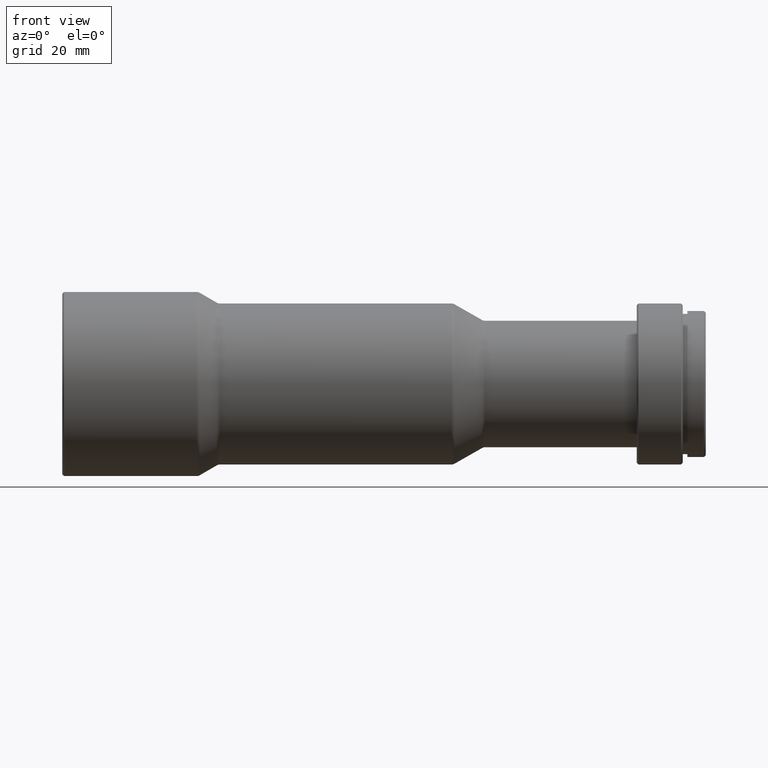
[diagram: clean part render]
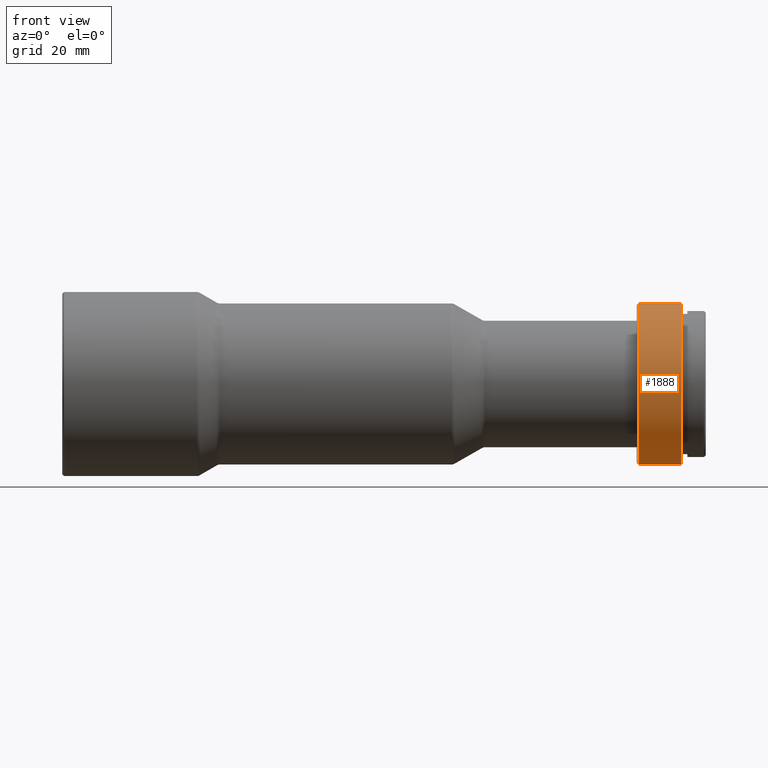
[diagram: same view with one face highlighted and labeled with its STEP entity id]
A machine part, front view. The second image highlights one B-rep face of the part: STEP entity #1888.
In plain terms, the highlighted cylindrical surface (partial cylindrical patch) has radius 14 mm, axis along (-1, -0, -0).
Its self-contained STEP definition (entity closure, byte-faithful):
#71 = EDGE_CURVE ( 'NONE', #901, #1162, #1196, .T. ) ;
#294 = CIRCLE ( 'NONE', #1772, 14.00000000000000000 ) ;
#300 = LINE ( 'NONE', #426, #1619 ) ;
#307 = AXIS2_PLACEMENT_3D ( 'NONE', #362, #960, #1207 ) ;
#362 = CARTESIAN_POINT ( 'NONE',  ( 0.0000000000000000000, 0.0000000000000000000, 0.0000000000000000000 ) ) ;
#426 = CARTESIAN_POINT ( 'NONE',  ( 0.0000000000000000000, 1.714505518806294600E-015, -14.00000000000000000 ) ) ;
#463 = AXIS2_PLACEMENT_3D ( 'NONE', #1581, #1427, #1349 ) ;
#484 = CARTESIAN_POINT ( 'NONE',  ( 107.5999999999999900, 0.0000000000000000000, 14.00000000000000000 ) ) ;
#572 = ORIENTED_EDGE ( 'NONE', *, *, #1743, .T. ) ;
#592 = VECTOR ( 'NONE', #689, 1000.000000000000000 ) ;
#689 = DIRECTION ( 'NONE',  ( -1.000000000000000000, -0.0000000000000000000, -0.0000000000000000000 ) ) ;
#749 = CIRCLE ( 'NONE', #463, 14.00000000000000000 ) ;
#901 = VERTEX_POINT ( 'NONE', #484 ) ;
#920 = CARTESIAN_POINT ( 'NONE',  ( 107.5999999999999900, 1.714505518806294600E-015, -14.00000000000000000 ) ) ;
#928 = CARTESIAN_POINT ( 'NONE',  ( 107.5999999999999900, 0.0000000000000000000, 0.0000000000000000000 ) ) ;
#945 = ORIENTED_EDGE ( 'NONE', *, *, #957, .T. ) ;
#957 = EDGE_CURVE ( 'NONE', #1493, #901, #294, .T. ) ;
#960 = DIRECTION ( 'NONE',  ( -1.000000000000000000, -0.0000000000000000000, -0.0000000000000000000 ) ) ;
#1085 = DIRECTION ( 'NONE',  ( 0.0000000000000000000, 0.0000000000000000000, 1.000000000000000000 ) ) ;
#1162 = VERTEX_POINT ( 'NONE', #1523 ) ;
#1196 = LINE ( 'NONE', #1682, #592 ) ;
#1207 = DIRECTION ( 'NONE',  ( 0.0000000000000000000, 0.0000000000000000000, 1.000000000000000000 ) ) ;
#1226 = DIRECTION ( 'NONE',  ( -1.000000000000000000, -0.0000000000000000000, -0.0000000000000000000 ) ) ;
#1349 = DIRECTION ( 'NONE',  ( 0.0000000000000000000, 0.0000000000000000000, -1.000000000000000000 ) ) ;
#1427 = DIRECTION ( 'NONE',  ( 1.000000000000000000, 0.0000000000000000000, 0.0000000000000000000 ) ) ;
#1493 = VERTEX_POINT ( 'NONE', #920 ) ;
#1523 = CARTESIAN_POINT ( 'NONE',  ( 100.2000000000000200, 0.0000000000000000000, 14.00000000000000000 ) ) ;
#1544 = ORIENTED_EDGE ( 'NONE', *, *, #71, .T. ) ;
#1565 = VERTEX_POINT ( 'NONE', #1697 ) ;
#1579 = EDGE_LOOP ( 'NONE', ( #1816, #945, #1544, #572 ) ) ;
#1581 = CARTESIAN_POINT ( 'NONE',  ( 100.2000000000000200, 0.0000000000000000000, 0.0000000000000000000 ) ) ;
#1619 = VECTOR ( 'NONE', #1636, 1000.000000000000000 ) ;
#1636 = DIRECTION ( 'NONE',  ( -1.000000000000000000, -0.0000000000000000000, -0.0000000000000000000 ) ) ;
#1682 = CARTESIAN_POINT ( 'NONE',  ( 0.0000000000000000000, 0.0000000000000000000, 14.00000000000000000 ) ) ;
#1697 = CARTESIAN_POINT ( 'NONE',  ( 100.2000000000000200, 1.714505518806294600E-015, -14.00000000000000000 ) ) ;
#1743 = EDGE_CURVE ( 'NONE', #1162, #1565, #749, .T. ) ;
#1772 = AXIS2_PLACEMENT_3D ( 'NONE', #928, #1226, #1085 ) ;
#1802 = CYLINDRICAL_SURFACE ( 'NONE', #307, 14.00000000000000000 ) ;
#1809 = EDGE_CURVE ( 'NONE', #1493, #1565, #300, .T. ) ;
#1816 = ORIENTED_EDGE ( 'NONE', *, *, #1809, .F. ) ;
#1837 = FACE_OUTER_BOUND ( 'NONE', #1579, .T. ) ;
#1888 = ADVANCED_FACE ( 'NONE', ( #1837 ), #1802, .T. ) ;